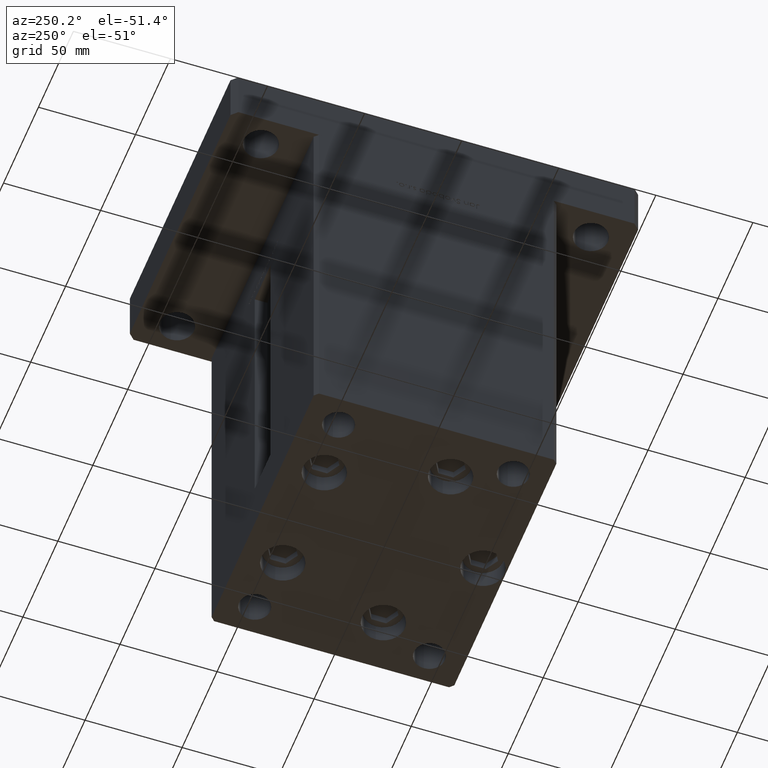
[diagram: clean part render]
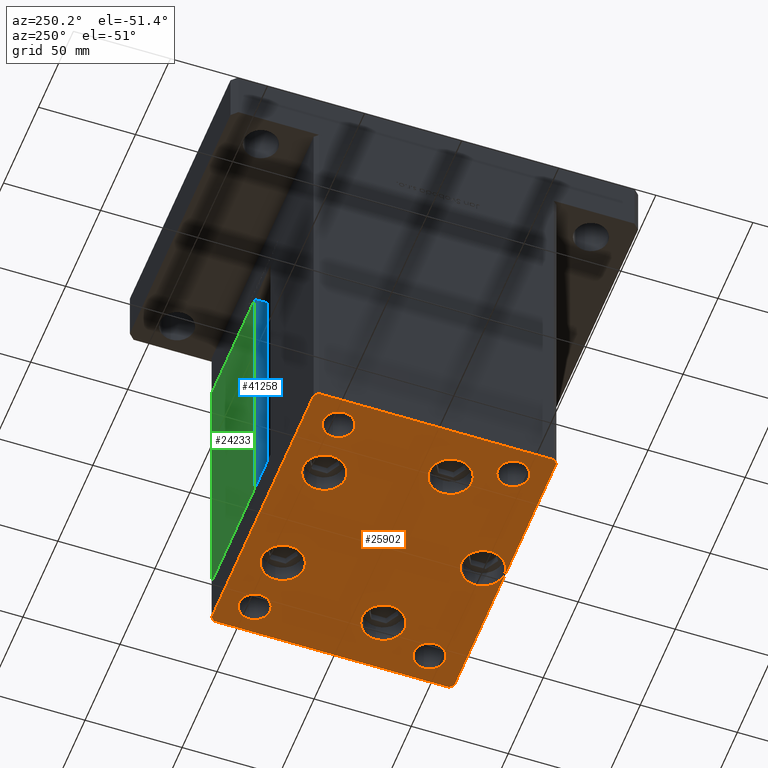
[diagram: same view with three faces highlighted in distinct colors, each labeled with its STEP entity id]
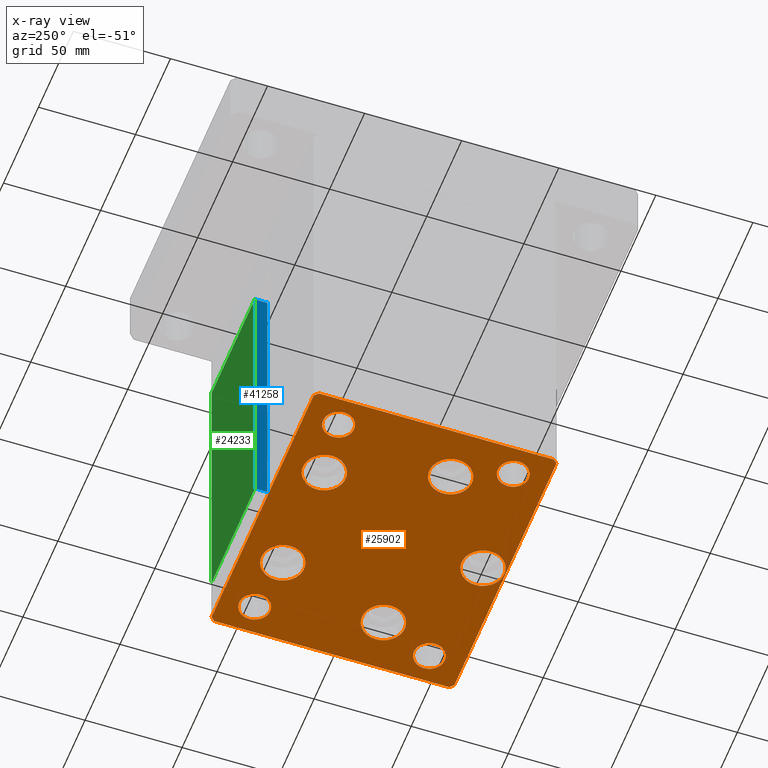
[diagram: x-ray of the same camera — body ghosted, the three highlighted faces saturated]
A machine part, auxiliary view with three faces highlighted in distinct colors.
The next image is the same camera in x-ray (body ghosted, the three faces saturated) — at least one of them is partly hidden behind the body in this view.
Their STEP definitions:

[orange] entity #25902 — the highlighted planar face has unit normal (0, 0, -1).
#91 = VERTEX_POINT ( 'NONE', #21592 ) ;
#257 = CARTESIAN_POINT ( 'NONE',  ( -75.00000000000001421, 60.49999999999997158, 0.000000000000000000 ) ) ;
#918 = CARTESIAN_POINT ( 'NONE',  ( 6.245698675651500444E-15, -51.00000000000000000, 0.000000000000000000 ) ) ;
#928 = CIRCLE ( 'NONE', #50201, 10.99999999999999645 ) ;
#933 = EDGE_CURVE ( 'NONE', #36689, #33363, #15667, .T. ) ;
#944 = AXIS2_PLACEMENT_3D ( 'NONE', #7762, #24006, #12370 ) ;
#1323 = ORIENTED_EDGE ( 'NONE', *, *, #22667, .T. ) ;
#1619 = VECTOR ( 'NONE', #22979, 1000.000000000000000 ) ;
#1665 = EDGE_CURVE ( 'NONE', #33363, #36704, #35169, .T. ) ;
#1666 = FACE_BOUND ( 'NONE', #5192, .T. ) ;
#1910 = DIRECTION ( 'NONE',  ( -0.000000000000000000, 0.000000000000000000, 1.000000000000000000 ) ) ;
#1932 = PLANE ( 'NONE',  #51199 ) ;
#2023 = DIRECTION ( 'NONE',  ( -0.000000000000000000, 0.000000000000000000, 1.000000000000000000 ) ) ;
#2117 = CARTESIAN_POINT ( 'NONE',  ( 29.73102073172059789, 41.43749999999999289, 0.000000000000000000 ) ) ;
#2236 = CARTESIAN_POINT ( 'NONE',  ( 74.99999999999992895, 60.50000000000002842, 0.000000000000000000 ) ) ;
#2513 = AXIS2_PLACEMENT_3D ( 'NONE', #19929, #41838, #52965 ) ;
#2623 = CARTESIAN_POINT ( 'NONE',  ( 68.00000000000000000, 44.99999999999999289, 0.000000000000000000 ) ) ;
#2690 = AXIS2_PLACEMENT_3D ( 'NONE', #15983, #19240, #19774 ) ;
#2771 = EDGE_CURVE ( 'NONE', #50677, #16211, #25842, .T. ) ;
#2995 = CIRCLE ( 'NONE', #51423, 10.99999999999999645 ) ;
#3320 = AXIS2_PLACEMENT_3D ( 'NONE', #39913, #2023, #39373 ) ;
#3538 = CIRCLE ( 'NONE', #6151, 8.000000000000007105 ) ;
#3779 = VERTEX_POINT ( 'NONE', #17478 ) ;
#3990 = CARTESIAN_POINT ( 'NONE',  ( 48.08326112068522207, -16.99999999999999645, 0.000000000000000000 ) ) ;
#4193 = CARTESIAN_POINT ( 'NONE',  ( 75.00000000000001421, -60.50000000000000711, 0.000000000000000000 ) ) ;
#4200 = DIRECTION ( 'NONE',  ( 1.000000000000000000, 0.000000000000000000, 0.000000000000000000 ) ) ;
#4365 = CIRCLE ( 'NONE', #944, 8.000000000000007105 ) ;
#4662 = VERTEX_POINT ( 'NONE', #38924 ) ;
#4685 = EDGE_LOOP ( 'NONE', ( #20105, #10572, #34621, #8162, #48422, #16045, #1323, #15207 ) ) ;
#5035 = ORIENTED_EDGE ( 'NONE', *, *, #32027, .F. ) ;
#5192 = EDGE_LOOP ( 'NONE', ( #52634, #7407 ) ) ;
#5622 = CARTESIAN_POINT ( 'NONE',  ( -67.99999999999998579, 45.00000000000000000, 0.000000000000000000 ) ) ;
#5852 = EDGE_CURVE ( 'NONE', #91, #45463, #4365, .T. ) ;
#6151 = AXIS2_PLACEMENT_3D ( 'NONE', #35149, #6192, #27019 ) ;
#6157 = VERTEX_POINT ( 'NONE', #52407 ) ;
#6192 = DIRECTION ( 'NONE',  ( -0.000000000000000000, 0.000000000000000000, 1.000000000000000000 ) ) ;
#6460 = AXIS2_PLACEMENT_3D ( 'NONE', #18958, #40069, #19497 ) ;
#6755 = VERTEX_POINT ( 'NONE', #37013 ) ;
#7040 = EDGE_CURVE ( 'NONE', #6755, #39666, #8729, .T. ) ;
#7171 = DIRECTION ( 'NONE',  ( 1.000000000000000000, 0.000000000000000000, 0.000000000000000000 ) ) ;
#7392 = ORIENTED_EDGE ( 'NONE', *, *, #34302, .T. ) ;
#7407 = ORIENTED_EDGE ( 'NONE', *, *, #23202, .T. ) ;
#7732 = EDGE_CURVE ( 'NONE', #14125, #14040, #44824, .T. ) ;
#7762 = CARTESIAN_POINT ( 'NONE',  ( 60.00000000000000000, -44.99999999999999289, 0.000000000000000000 ) ) ;
#8121 = AXIS2_PLACEMENT_3D ( 'NONE', #34676, #1910, #30853 ) ;
#8162 = ORIENTED_EDGE ( 'NONE', *, *, #7732, .T. ) ;
#8178 = DIRECTION ( 'NONE',  ( 0.000000000000000000, -0.000000000000000000, -1.000000000000000000 ) ) ;
#8274 = CARTESIAN_POINT ( 'NONE',  ( 6.245698675651500444E-15, -51.00000000000000000, 0.000000000000000000 ) ) ;
#8501 = ORIENTED_EDGE ( 'NONE', *, *, #24244, .F. ) ;
#8729 = CIRCLE ( 'NONE', #15652, 8.000000000000000000 ) ;
#8791 = EDGE_CURVE ( 'NONE', #36704, #14125, #11734, .T. ) ;
#9070 = DIRECTION ( 'NONE',  ( 0.000000000000000000, -0.000000000000000000, -1.000000000000000000 ) ) ;
#9136 = CARTESIAN_POINT ( 'NONE',  ( 75.00000000000001421, -60.50000000000000711, 0.000000000000000000 ) ) ;
#9363 = CARTESIAN_POINT ( 'NONE',  ( -75.00000000000001421, -60.50000000000001421, 0.000000000000000000 ) ) ;
#9414 = EDGE_CURVE ( 'NONE', #6157, #40467, #29512, .T. ) ;
#9889 = EDGE_CURVE ( 'NONE', #40467, #6157, #40907, .T. ) ;
#9933 = VECTOR ( 'NONE', #41360, 1000.000000000000000 ) ;
#10045 = CARTESIAN_POINT ( 'NONE',  ( 29.73102073172059789, 41.43749999999999289, 0.000000000000000000 ) ) ;
#10230 = DIRECTION ( 'NONE',  ( 0.000000000000000000, -0.000000000000000000, -1.000000000000000000 ) ) ;
#10384 = EDGE_LOOP ( 'NONE', ( #40028, #50570 ) ) ;
#10572 = ORIENTED_EDGE ( 'NONE', *, *, #1665, .T. ) ;
#10849 = CARTESIAN_POINT ( 'NONE',  ( -40.73102073172060500, 41.43749999999998579, 0.000000000000000000 ) ) ;
#11169 = ORIENTED_EDGE ( 'NONE', *, *, #5852, .T. ) ;
#11352 = VECTOR ( 'NONE', #36914, 1000.000000000000000 ) ;
#11591 = LINE ( 'NONE', #11855, #9933 ) ;
#11734 = LINE ( 'NONE', #24707, #11352 ) ;
#11855 = CARTESIAN_POINT ( 'NONE',  ( 72.99999999999992895, 62.50000000000001421, 0.000000000000000000 ) ) ;
#12167 = EDGE_CURVE ( 'NONE', #34351, #36689, #40885, .T. ) ;
#12370 = DIRECTION ( 'NONE',  ( 1.000000000000000000, 0.000000000000000000, 0.000000000000000000 ) ) ;
#12444 = CARTESIAN_POINT ( 'NONE',  ( -75.00000000000001421, 60.49999999999997158, 0.000000000000000000 ) ) ;
#12627 = EDGE_LOOP ( 'NONE', ( #8501, #24719 ) ) ;
#13317 = CIRCLE ( 'NONE', #8121, 8.000000000000000000 ) ;
#13321 = FACE_BOUND ( 'NONE', #21593, .T. ) ;
#13352 = CIRCLE ( 'NONE', #47060, 11.00000000000000355 ) ;
#13548 = VERTEX_POINT ( 'NONE', #10849 ) ;
#13904 = CIRCLE ( 'NONE', #2690, 11.00000000000000355 ) ;
#14040 = VERTEX_POINT ( 'NONE', #48970 ) ;
#14114 = FACE_OUTER_BOUND ( 'NONE', #4685, .T. ) ;
#14125 = VERTEX_POINT ( 'NONE', #9136 ) ;
#14472 = EDGE_CURVE ( 'NONE', #45463, #91, #34541, .T. ) ;
#14619 = VERTEX_POINT ( 'NONE', #22586 ) ;
#15164 = EDGE_CURVE ( 'NONE', #3779, #13548, #18960, .T. ) ;
#15207 = ORIENTED_EDGE ( 'NONE', *, *, #12167, .T. ) ;
#15652 = AXIS2_PLACEMENT_3D ( 'NONE', #48618, #40208, #7171 ) ;
#15667 = LINE ( 'NONE', #15931, #49166 ) ;
#15856 = AXIS2_PLACEMENT_3D ( 'NONE', #918, #52585, #39581 ) ;
#15931 = CARTESIAN_POINT ( 'NONE',  ( -75.00000000000001421, -60.50000000000001421, 0.000000000000000000 ) ) ;
#15983 = CARTESIAN_POINT ( 'NONE',  ( -48.08326112068522207, -17.00000000000000711, 0.000000000000000000 ) ) ;
#16045 = ORIENTED_EDGE ( 'NONE', *, *, #40016, .T. ) ;
#16211 = VERTEX_POINT ( 'NONE', #2623 ) ;
#17478 = CARTESIAN_POINT ( 'NONE',  ( -18.73102073172060500, 41.43749999999998579, 0.000000000000000000 ) ) ;
#17534 = CARTESIAN_POINT ( 'NONE',  ( 59.08326112068522207, -16.99999999999999645, 0.000000000000000000 ) ) ;
#17650 = VERTEX_POINT ( 'NONE', #32864 ) ;
#17718 = DIRECTION ( 'NONE',  ( -0.7071067811865451302, -0.7071067811865500152, 0.000000000000000000 ) ) ;
#18281 = AXIS2_PLACEMENT_3D ( 'NONE', #8274, #41855, #46184 ) ;
#18370 = DIRECTION ( 'NONE',  ( 1.000000000000000000, 0.000000000000000000, 0.000000000000000000 ) ) ;
#18553 = CIRCLE ( 'NONE', #46235, 11.00000000000000355 ) ;
#18707 = FACE_BOUND ( 'NONE', #42605, .T. ) ;
#18958 = CARTESIAN_POINT ( 'NONE',  ( -29.73102073172060500, 41.43749999999998579, 0.000000000000000000 ) ) ;
#18960 = CIRCLE ( 'NONE', #47485, 11.00000000000000000 ) ;
#19240 = DIRECTION ( 'NONE',  ( 0.000000000000000000, -0.000000000000000000, -1.000000000000000000 ) ) ;
#19298 = EDGE_LOOP ( 'NONE', ( #43595, #53592 ) ) ;
#19388 = CARTESIAN_POINT ( 'NONE',  ( 48.08326112068522207, -16.99999999999999645, 0.000000000000000000 ) ) ;
#19497 = DIRECTION ( 'NONE',  ( 1.000000000000000000, 0.000000000000000000, 0.000000000000000000 ) ) ;
#19679 = ORIENTED_EDGE ( 'NONE', *, *, #52618, .F. ) ;
#19752 = CARTESIAN_POINT ( 'NONE',  ( -48.08326112068522207, -17.00000000000000711, 0.000000000000000000 ) ) ;
#19774 = DIRECTION ( 'NONE',  ( 1.000000000000000000, 0.000000000000000000, 0.000000000000000000 ) ) ;
#19929 = CARTESIAN_POINT ( 'NONE',  ( 60.00000000000000000, 44.99999999999999289, 0.000000000000000000 ) ) ;
#20105 = ORIENTED_EDGE ( 'NONE', *, *, #933, .T. ) ;
#20219 = EDGE_CURVE ( 'NONE', #14040, #38558, #43122, .T. ) ;
#20512 = DIRECTION ( 'NONE',  ( 1.000000000000000000, 0.000000000000000000, 0.000000000000000000 ) ) ;
#21185 = ORIENTED_EDGE ( 'NONE', *, *, #49887, .T. ) ;
#21592 = CARTESIAN_POINT ( 'NONE',  ( 68.00000000000000000, -44.99999999999999289, 0.000000000000000000 ) ) ;
#21593 = EDGE_LOOP ( 'NONE', ( #19679, #5035 ) ) ;
#21794 = ORIENTED_EDGE ( 'NONE', *, *, #14472, .T. ) ;
#22238 = FACE_BOUND ( 'NONE', #44778, .T. ) ;
#22586 = CARTESIAN_POINT ( 'NONE',  ( -37.08326112068521496, -17.00000000000000711, 0.000000000000000000 ) ) ;
#22667 = EDGE_CURVE ( 'NONE', #4662, #34351, #29880, .T. ) ;
#22916 = DIRECTION ( 'NONE',  ( 0.000000000000000000, -0.000000000000000000, -1.000000000000000000 ) ) ;
#22979 = DIRECTION ( 'NONE',  ( 1.000000000000000000, 9.505334114941407284E-17, 0.000000000000000000 ) ) ;
#23023 = EDGE_CURVE ( 'NONE', #25958, #24602, #928, .T. ) ;
#23202 = EDGE_CURVE ( 'NONE', #14619, #53126, #13904, .T. ) ;
#24006 = DIRECTION ( 'NONE',  ( 0.000000000000000000, -0.000000000000000000, -1.000000000000000000 ) ) ;
#24151 = DIRECTION ( 'NONE',  ( 1.000000000000000000, 0.000000000000000000, 0.000000000000000000 ) ) ;
#24244 = EDGE_CURVE ( 'NONE', #16211, #50677, #3538, .T. ) ;
#24602 = VERTEX_POINT ( 'NONE', #35063 ) ;
#24707 = CARTESIAN_POINT ( 'NONE',  ( 73.00000000000001421, -62.50000000000001421, 0.000000000000000000 ) ) ;
#24719 = ORIENTED_EDGE ( 'NONE', *, *, #2771, .F. ) ;
#24755 = CARTESIAN_POINT ( 'NONE',  ( 51.99999999999999289, 44.99999999999999289, 0.000000000000000000 ) ) ;
#25201 = CARTESIAN_POINT ( 'NONE',  ( -73.00000000000001421, -62.50000000000002842, 0.000000000000000000 ) ) ;
#25226 = CARTESIAN_POINT ( 'NONE',  ( 72.99999999999992895, 62.50000000000001421, 0.000000000000000000 ) ) ;
#25842 = CIRCLE ( 'NONE', #2513, 8.000000000000007105 ) ;
#25902 = ADVANCED_FACE ( 'NONE', ( #18707, #26295, #22238, #38754, #1666, #34698, #51215, #13321, #14114, #39018 ), #1932, .T. ) ;
#25958 = VERTEX_POINT ( 'NONE', #27344 ) ;
#26029 = DIRECTION ( 'NONE',  ( 0.000000000000000000, -0.000000000000000000, -1.000000000000000000 ) ) ;
#26295 = FACE_BOUND ( 'NONE', #37757, .T. ) ;
#26546 = DIRECTION ( 'NONE',  ( 1.000000000000000000, 0.000000000000000000, 0.000000000000000000 ) ) ;
#26598 = ORIENTED_EDGE ( 'NONE', *, *, #23023, .T. ) ;
#26865 = EDGE_LOOP ( 'NONE', ( #11169, #21794 ) ) ;
#27019 = DIRECTION ( 'NONE',  ( 1.000000000000000000, 0.000000000000000000, 0.000000000000000000 ) ) ;
#27199 = CIRCLE ( 'NONE', #6460, 11.00000000000000000 ) ;
#27344 = CARTESIAN_POINT ( 'NONE',  ( 40.73102073172059079, 41.43749999999999289, 0.000000000000000000 ) ) ;
#27608 = ORIENTED_EDGE ( 'NONE', *, *, #15164, .T. ) ;
#28289 = DIRECTION ( 'NONE',  ( -6.881547673296424104E-16, 1.000000000000000000, 0.000000000000000000 ) ) ;
#29244 = CARTESIAN_POINT ( 'NONE',  ( -59.08326112068522207, -17.00000000000000711, 0.000000000000000000 ) ) ;
#29512 = CIRCLE ( 'NONE', #18281, 11.00000000000000000 ) ;
#29880 = LINE ( 'NONE', #50486, #52828 ) ;
#30853 = DIRECTION ( 'NONE',  ( 1.000000000000000000, 0.000000000000000000, 0.000000000000000000 ) ) ;
#30972 = CIRCLE ( 'NONE', #3320, 8.000000000000000000 ) ;
#31408 = DIRECTION ( 'NONE',  ( 1.000000000000000000, 0.000000000000000000, 0.000000000000000000 ) ) ;
#31631 = CARTESIAN_POINT ( 'NONE',  ( 51.99999999999999289, -44.99999999999999289, 0.000000000000000000 ) ) ;
#32027 = EDGE_CURVE ( 'NONE', #35741, #44591, #13317, .T. ) ;
#32169 = DIRECTION ( 'NONE',  ( 0.7071067811865451302, -0.7071067811865500152, 0.000000000000000000 ) ) ;
#32864 = CARTESIAN_POINT ( 'NONE',  ( 37.08326112068521496, -16.99999999999999645, 0.000000000000000000 ) ) ;
#33223 = ORIENTED_EDGE ( 'NONE', *, *, #38746, .T. ) ;
#33363 = VERTEX_POINT ( 'NONE', #25201 ) ;
#33489 = EDGE_CURVE ( 'NONE', #53126, #14619, #13352, .T. ) ;
#34302 = EDGE_CURVE ( 'NONE', #13548, #3779, #27199, .T. ) ;
#34351 = VERTEX_POINT ( 'NONE', #257 ) ;
#34537 = EDGE_CURVE ( 'NONE', #24602, #25958, #2995, .T. ) ;
#34541 = CIRCLE ( 'NONE', #37120, 8.000000000000007105 ) ;
#34621 = ORIENTED_EDGE ( 'NONE', *, *, #8791, .T. ) ;
#34676 = CARTESIAN_POINT ( 'NONE',  ( -60.00000000000000000, 45.00000000000000000, 0.000000000000000000 ) ) ;
#34698 = FACE_BOUND ( 'NONE', #12627, .T. ) ;
#34800 = CARTESIAN_POINT ( 'NONE',  ( 73.00000000000001421, -62.50000000000001421, 0.000000000000000000 ) ) ;
#35063 = CARTESIAN_POINT ( 'NONE',  ( 18.73102073172060500, 41.43749999999999289, 0.000000000000000000 ) ) ;
#35149 = CARTESIAN_POINT ( 'NONE',  ( 60.00000000000000000, 44.99999999999999289, 0.000000000000000000 ) ) ;
#35169 = LINE ( 'NONE', #47645, #1619 ) ;
#35741 = VERTEX_POINT ( 'NONE', #5622 ) ;
#35832 = AXIS2_PLACEMENT_3D ( 'NONE', #41486, #8178, #24151 ) ;
#36413 = VECTOR ( 'NONE', #28289, 1000.000000000000000 ) ;
#36689 = VERTEX_POINT ( 'NONE', #9363 ) ;
#36704 = VERTEX_POINT ( 'NONE', #34800 ) ;
#36914 = DIRECTION ( 'NONE',  ( 0.7071067811865463515, 0.7071067811865487940, 0.000000000000000000 ) ) ;
#37013 = CARTESIAN_POINT ( 'NONE',  ( -67.99999999999998579, -45.00000000000000000, 0.000000000000000000 ) ) ;
#37120 = AXIS2_PLACEMENT_3D ( 'NONE', #45363, #9070, #4200 ) ;
#37757 = EDGE_LOOP ( 'NONE', ( #52352, #26598 ) ) ;
#38509 = EDGE_CURVE ( 'NONE', #39666, #6755, #52276, .T. ) ;
#38558 = VERTEX_POINT ( 'NONE', #25226 ) ;
#38746 = EDGE_CURVE ( 'NONE', #17650, #49819, #18553, .T. ) ;
#38754 = FACE_BOUND ( 'NONE', #10384, .T. ) ;
#38871 = CARTESIAN_POINT ( 'NONE',  ( -52.00000000000000000, 45.00000000000000000, 0.000000000000000000 ) ) ;
#38924 = CARTESIAN_POINT ( 'NONE',  ( -73.00000000000001421, 62.49999999999998579, 0.000000000000000000 ) ) ;
#39018 = FACE_BOUND ( 'NONE', #19298, .T. ) ;
#39062 = DIRECTION ( 'NONE',  ( -0.7071067811865500152, 0.7071067811865451302, 0.000000000000000000 ) ) ;
#39373 = DIRECTION ( 'NONE',  ( 1.000000000000000000, 0.000000000000000000, 0.000000000000000000 ) ) ;
#39437 = DIRECTION ( 'NONE',  ( 1.000000000000000000, 0.000000000000000000, 0.000000000000000000 ) ) ;
#39547 = CARTESIAN_POINT ( 'NONE',  ( 0.000000000000000000, 0.000000000000000000, 0.000000000000000000 ) ) ;
#39581 = DIRECTION ( 'NONE',  ( 1.000000000000000000, 0.000000000000000000, 0.000000000000000000 ) ) ;
#39666 = VERTEX_POINT ( 'NONE', #45223 ) ;
#39689 = DIRECTION ( 'NONE',  ( 0.000000000000000000, -0.000000000000000000, -1.000000000000000000 ) ) ;
#39913 = CARTESIAN_POINT ( 'NONE',  ( -60.00000000000000000, 45.00000000000000000, 0.000000000000000000 ) ) ;
#40016 = EDGE_CURVE ( 'NONE', #38558, #4662, #11591, .T. ) ;
#40017 = DIRECTION ( 'NONE',  ( 0.000000000000000000, -0.000000000000000000, -1.000000000000000000 ) ) ;
#40028 = ORIENTED_EDGE ( 'NONE', *, *, #9414, .T. ) ;
#40069 = DIRECTION ( 'NONE',  ( 0.000000000000000000, -0.000000000000000000, -1.000000000000000000 ) ) ;
#40208 = DIRECTION ( 'NONE',  ( 0.000000000000000000, -0.000000000000000000, -1.000000000000000000 ) ) ;
#40467 = VERTEX_POINT ( 'NONE', #40779 ) ;
#40596 = DIRECTION ( 'NONE',  ( 1.000000000000000000, 0.000000000000000000, 0.000000000000000000 ) ) ;
#40779 = CARTESIAN_POINT ( 'NONE',  ( 11.00000000000000711, -51.00000000000000000, 0.000000000000000000 ) ) ;
#40885 = LINE ( 'NONE', #12444, #50896 ) ;
#40907 = CIRCLE ( 'NONE', #15856, 11.00000000000000000 ) ;
#41276 = AXIS2_PLACEMENT_3D ( 'NONE', #19388, #39689, #52425 ) ;
#41360 = DIRECTION ( 'NONE',  ( -1.000000000000000000, -1.901066822988282689E-16, 0.000000000000000000 ) ) ;
#41412 = DIRECTION ( 'NONE',  ( 0.000000000000000000, -1.000000000000000000, 0.000000000000000000 ) ) ;
#41486 = CARTESIAN_POINT ( 'NONE',  ( -59.99999999999999289, -45.00000000000000000, 0.000000000000000000 ) ) ;
#41838 = DIRECTION ( 'NONE',  ( -0.000000000000000000, 0.000000000000000000, 1.000000000000000000 ) ) ;
#41855 = DIRECTION ( 'NONE',  ( 0.000000000000000000, -0.000000000000000000, -1.000000000000000000 ) ) ;
#42605 = EDGE_LOOP ( 'NONE', ( #7392, #27608 ) ) ;
#43122 = LINE ( 'NONE', #2236, #51014 ) ;
#43236 = CARTESIAN_POINT ( 'NONE',  ( -29.73102073172060500, 41.43749999999998579, 0.000000000000000000 ) ) ;
#43595 = ORIENTED_EDGE ( 'NONE', *, *, #38509, .T. ) ;
#44144 = DIRECTION ( 'NONE',  ( -0.000000000000000000, 0.000000000000000000, 1.000000000000000000 ) ) ;
#44591 = VERTEX_POINT ( 'NONE', #38871 ) ;
#44778 = EDGE_LOOP ( 'NONE', ( #33223, #21185 ) ) ;
#44824 = LINE ( 'NONE', #4193, #36413 ) ;
#45223 = CARTESIAN_POINT ( 'NONE',  ( -51.99999999999999289, -45.00000000000000000, 0.000000000000000000 ) ) ;
#45363 = CARTESIAN_POINT ( 'NONE',  ( 60.00000000000000000, -44.99999999999999289, 0.000000000000000000 ) ) ;
#45463 = VERTEX_POINT ( 'NONE', #31631 ) ;
#46184 = DIRECTION ( 'NONE',  ( 1.000000000000000000, 0.000000000000000000, 0.000000000000000000 ) ) ;
#46235 = AXIS2_PLACEMENT_3D ( 'NONE', #3990, #40017, #20512 ) ;
#47060 = AXIS2_PLACEMENT_3D ( 'NONE', #19752, #49260, #40596 ) ;
#47348 = CIRCLE ( 'NONE', #41276, 11.00000000000000355 ) ;
#47485 = AXIS2_PLACEMENT_3D ( 'NONE', #43236, #22916, #39437 ) ;
#47645 = CARTESIAN_POINT ( 'NONE',  ( -73.00000000000001421, -62.50000000000002842, 0.000000000000000000 ) ) ;
#48422 = ORIENTED_EDGE ( 'NONE', *, *, #20219, .T. ) ;
#48618 = CARTESIAN_POINT ( 'NONE',  ( -59.99999999999999289, -45.00000000000000000, 0.000000000000000000 ) ) ;
#48970 = CARTESIAN_POINT ( 'NONE',  ( 74.99999999999992895, 60.50000000000002842, 0.000000000000000000 ) ) ;
#49166 = VECTOR ( 'NONE', #32169, 1000.000000000000114 ) ;
#49260 = DIRECTION ( 'NONE',  ( 0.000000000000000000, -0.000000000000000000, -1.000000000000000000 ) ) ;
#49819 = VERTEX_POINT ( 'NONE', #17534 ) ;
#49887 = EDGE_CURVE ( 'NONE', #49819, #17650, #47348, .T. ) ;
#50201 = AXIS2_PLACEMENT_3D ( 'NONE', #10045, #26029, #26546 ) ;
#50486 = CARTESIAN_POINT ( 'NONE',  ( -73.00000000000001421, 62.49999999999998579, 0.000000000000000000 ) ) ;
#50570 = ORIENTED_EDGE ( 'NONE', *, *, #9889, .T. ) ;
#50677 = VERTEX_POINT ( 'NONE', #24755 ) ;
#50896 = VECTOR ( 'NONE', #41412, 1000.000000000000000 ) ;
#51014 = VECTOR ( 'NONE', #39062, 1000.000000000000114 ) ;
#51199 = AXIS2_PLACEMENT_3D ( 'NONE', #39547, #44144, #31408 ) ;
#51215 = FACE_BOUND ( 'NONE', #26865, .T. ) ;
#51423 = AXIS2_PLACEMENT_3D ( 'NONE', #2117, #10230, #18370 ) ;
#52276 = CIRCLE ( 'NONE', #35832, 8.000000000000000000 ) ;
#52352 = ORIENTED_EDGE ( 'NONE', *, *, #34537, .T. ) ;
#52407 = CARTESIAN_POINT ( 'NONE',  ( -10.99999999999999289, -51.00000000000000000, 0.000000000000000000 ) ) ;
#52425 = DIRECTION ( 'NONE',  ( 1.000000000000000000, 0.000000000000000000, 0.000000000000000000 ) ) ;
#52585 = DIRECTION ( 'NONE',  ( 0.000000000000000000, -0.000000000000000000, -1.000000000000000000 ) ) ;
#52618 = EDGE_CURVE ( 'NONE', #44591, #35741, #30972, .T. ) ;
#52634 = ORIENTED_EDGE ( 'NONE', *, *, #33489, .T. ) ;
#52828 = VECTOR ( 'NONE', #17718, 1000.000000000000114 ) ;
#52965 = DIRECTION ( 'NONE',  ( 1.000000000000000000, 0.000000000000000000, 0.000000000000000000 ) ) ;
#53126 = VERTEX_POINT ( 'NONE', #29244 ) ;
#53592 = ORIENTED_EDGE ( 'NONE', *, *, #7040, .T. ) ;

[blue] entity #41258 — the highlighted planar face has unit normal (1, 0, 0).
#3461 = VECTOR ( 'NONE', #32808, 1000.000000000000000 ) ;
#4167 = EDGE_LOOP ( 'NONE', ( #48586, #13378, #5449, #6315 ) ) ;
#4971 = CARTESIAN_POINT ( 'NONE',  ( 11.25000000000000178, 55.99999999999999289, 0.000000000000000000 ) ) ;
#5449 = ORIENTED_EDGE ( 'NONE', *, *, #14466, .T. ) ;
#5456 = LINE ( 'NONE', #30602, #8715 ) ;
#6315 = ORIENTED_EDGE ( 'NONE', *, *, #21130, .F. ) ;
#8487 = LINE ( 'NONE', #4971, #32309 ) ;
#8715 = VECTOR ( 'NONE', #18430, 1000.000000000000000 ) ;
#8802 = CARTESIAN_POINT ( 'NONE',  ( 11.25000000000000178, 55.99999999999999289, 0.000000000000000000 ) ) ;
#8951 = DIRECTION ( 'NONE',  ( 0.000000000000000000, 0.000000000000000000, -1.000000000000000000 ) ) ;
#9981 = AXIS2_PLACEMENT_3D ( 'NONE', #25722, #38983, #8951 ) ;
#11238 = CARTESIAN_POINT ( 'NONE',  ( 11.25000000000000178, 55.99999999999999289, 0.000000000000000000 ) ) ;
#12681 = VERTEX_POINT ( 'NONE', #11238 ) ;
#13134 = DIRECTION ( 'NONE',  ( -0.000000000000000000, -0.000000000000000000, 1.000000000000000000 ) ) ;
#13378 = ORIENTED_EDGE ( 'NONE', *, *, #31776, .F. ) ;
#14081 = PLANE ( 'NONE',  #9981 ) ;
#14466 = EDGE_CURVE ( 'NONE', #12681, #52780, #49959, .T. ) ;
#18430 = DIRECTION ( 'NONE',  ( -0.000000000000000000, -0.000000000000000000, 1.000000000000000000 ) ) ;
#21130 = EDGE_CURVE ( 'NONE', #46201, #52780, #44731, .T. ) ;
#22176 = EDGE_CURVE ( 'NONE', #28218, #46201, #5456, .T. ) ;
#24144 = CARTESIAN_POINT ( 'NONE',  ( 11.25000000000000178, 0.000000000000000000, 147.0000000000000000 ) ) ;
#25722 = CARTESIAN_POINT ( 'NONE',  ( 11.25000000000000178, 55.99999999999999289, 0.000000000000000000 ) ) ;
#28218 = VERTEX_POINT ( 'NONE', #29782 ) ;
#29782 = CARTESIAN_POINT ( 'NONE',  ( 11.25000000000000178, 62.49999999999999289, 0.000000000000000000 ) ) ;
#30110 = CARTESIAN_POINT ( 'NONE',  ( 11.24999999999999467, 62.49999999999999289, 147.0000000000000000 ) ) ;
#30323 = FACE_OUTER_BOUND ( 'NONE', #4167, .T. ) ;
#30602 = CARTESIAN_POINT ( 'NONE',  ( 11.25000000000000178, 62.49999999999999289, 0.000000000000000000 ) ) ;
#31776 = EDGE_CURVE ( 'NONE', #12681, #28218, #8487, .T. ) ;
#32309 = VECTOR ( 'NONE', #46402, 1000.000000000000000 ) ;
#32808 = DIRECTION ( 'NONE',  ( -0.000000000000000000, -1.000000000000000000, 0.000000000000000000 ) ) ;
#38983 = DIRECTION ( 'NONE',  ( 1.000000000000000000, -0.000000000000000000, 0.000000000000000000 ) ) ;
#41258 = ADVANCED_FACE ( 'NONE', ( #30323 ), #14081, .F. ) ;
#44731 = LINE ( 'NONE', #24144, #3461 ) ;
#46201 = VERTEX_POINT ( 'NONE', #30110 ) ;
#46402 = DIRECTION ( 'NONE',  ( 0.000000000000000000, 1.000000000000000000, 0.000000000000000000 ) ) ;
#46649 = VECTOR ( 'NONE', #13134, 1000.000000000000000 ) ;
#48586 = ORIENTED_EDGE ( 'NONE', *, *, #22176, .F. ) ;
#49113 = CARTESIAN_POINT ( 'NONE',  ( 11.25000000000000178, 55.99999999999999289, 147.0000000000000000 ) ) ;
#49959 = LINE ( 'NONE', #8802, #46649 ) ;
#52780 = VERTEX_POINT ( 'NONE', #49113 ) ;

[green] entity #24233 — the highlighted planar face has unit normal (-0, -1, 0).
#271 = DIRECTION ( 'NONE',  ( -1.123707514802790025E-16, -1.000000000000000000, 0.000000000000000000 ) ) ;
#955 = LINE ( 'NONE', #33978, #32609 ) ;
#3952 = VERTEX_POINT ( 'NONE', #10405 ) ;
#5134 = PLANE ( 'NONE',  #11337 ) ;
#5456 = LINE ( 'NONE', #30602, #8715 ) ;
#8715 = VECTOR ( 'NONE', #18430, 1000.000000000000000 ) ;
#8924 = CARTESIAN_POINT ( 'NONE',  ( -11.25000000000000178, 62.49999999999999289, 147.0000000000000000 ) ) ;
#9330 = DIRECTION ( 'NONE',  ( 1.000000000000000000, 0.000000000000000000, 0.000000000000000000 ) ) ;
#10142 = LINE ( 'NONE', #22854, #49352 ) ;
#10214 = EDGE_LOOP ( 'NONE', ( #34669, #34133, #52321, #27065 ) ) ;
#10405 = CARTESIAN_POINT ( 'NONE',  ( 73.00000000000001421, 62.50000000000000000, 0.000000000000000000 ) ) ;
#11337 = AXIS2_PLACEMENT_3D ( 'NONE', #8924, #271, #37894 ) ;
#14781 = CARTESIAN_POINT ( 'NONE',  ( 73.00000000000001421, 62.50000000000000000, 147.0000000000000000 ) ) ;
#18430 = DIRECTION ( 'NONE',  ( -0.000000000000000000, -0.000000000000000000, 1.000000000000000000 ) ) ;
#19179 = EDGE_CURVE ( 'NONE', #3952, #28218, #10142, .T. ) ;
#22083 = CARTESIAN_POINT ( 'NONE',  ( 73.00000000000001421, 62.50000000000000000, 147.0000000000000000 ) ) ;
#22176 = EDGE_CURVE ( 'NONE', #28218, #46201, #5456, .T. ) ;
#22854 = CARTESIAN_POINT ( 'NONE',  ( -11.25000000000000178, 62.49999999999999289, 0.000000000000000000 ) ) ;
#24233 = ADVANCED_FACE ( 'NONE', ( #25695 ), #5134, .F. ) ;
#25695 = FACE_OUTER_BOUND ( 'NONE', #10214, .T. ) ;
#26642 = DIRECTION ( 'NONE',  ( -1.000000000000000000, 1.123707514802790025E-16, 0.000000000000000000 ) ) ;
#27065 = ORIENTED_EDGE ( 'NONE', *, *, #50610, .T. ) ;
#28218 = VERTEX_POINT ( 'NONE', #29782 ) ;
#29782 = CARTESIAN_POINT ( 'NONE',  ( 11.25000000000000178, 62.49999999999999289, 0.000000000000000000 ) ) ;
#30110 = CARTESIAN_POINT ( 'NONE',  ( 11.24999999999999467, 62.49999999999999289, 147.0000000000000000 ) ) ;
#30602 = CARTESIAN_POINT ( 'NONE',  ( 11.25000000000000178, 62.49999999999999289, 0.000000000000000000 ) ) ;
#31479 = VERTEX_POINT ( 'NONE', #22083 ) ;
#32609 = VECTOR ( 'NONE', #9330, 1000.000000000000000 ) ;
#33978 = CARTESIAN_POINT ( 'NONE',  ( -11.25000000000000178, 62.49999999999999289, 147.0000000000000000 ) ) ;
#34133 = ORIENTED_EDGE ( 'NONE', *, *, #22176, .T. ) ;
#34669 = ORIENTED_EDGE ( 'NONE', *, *, #19179, .T. ) ;
#35627 = DIRECTION ( 'NONE',  ( -0.000000000000000000, -0.000000000000000000, -1.000000000000000000 ) ) ;
#37837 = VECTOR ( 'NONE', #35627, 1000.000000000000000 ) ;
#37894 = DIRECTION ( 'NONE',  ( 1.000000000000000000, -1.123707514802790025E-16, 0.000000000000000000 ) ) ;
#46201 = VERTEX_POINT ( 'NONE', #30110 ) ;
#49352 = VECTOR ( 'NONE', #26642, 1000.000000000000000 ) ;
#50610 = EDGE_CURVE ( 'NONE', #31479, #3952, #51883, .T. ) ;
#50840 = EDGE_CURVE ( 'NONE', #46201, #31479, #955, .T. ) ;
#51883 = LINE ( 'NONE', #14781, #37837 ) ;
#52321 = ORIENTED_EDGE ( 'NONE', *, *, #50840, .T. ) ;